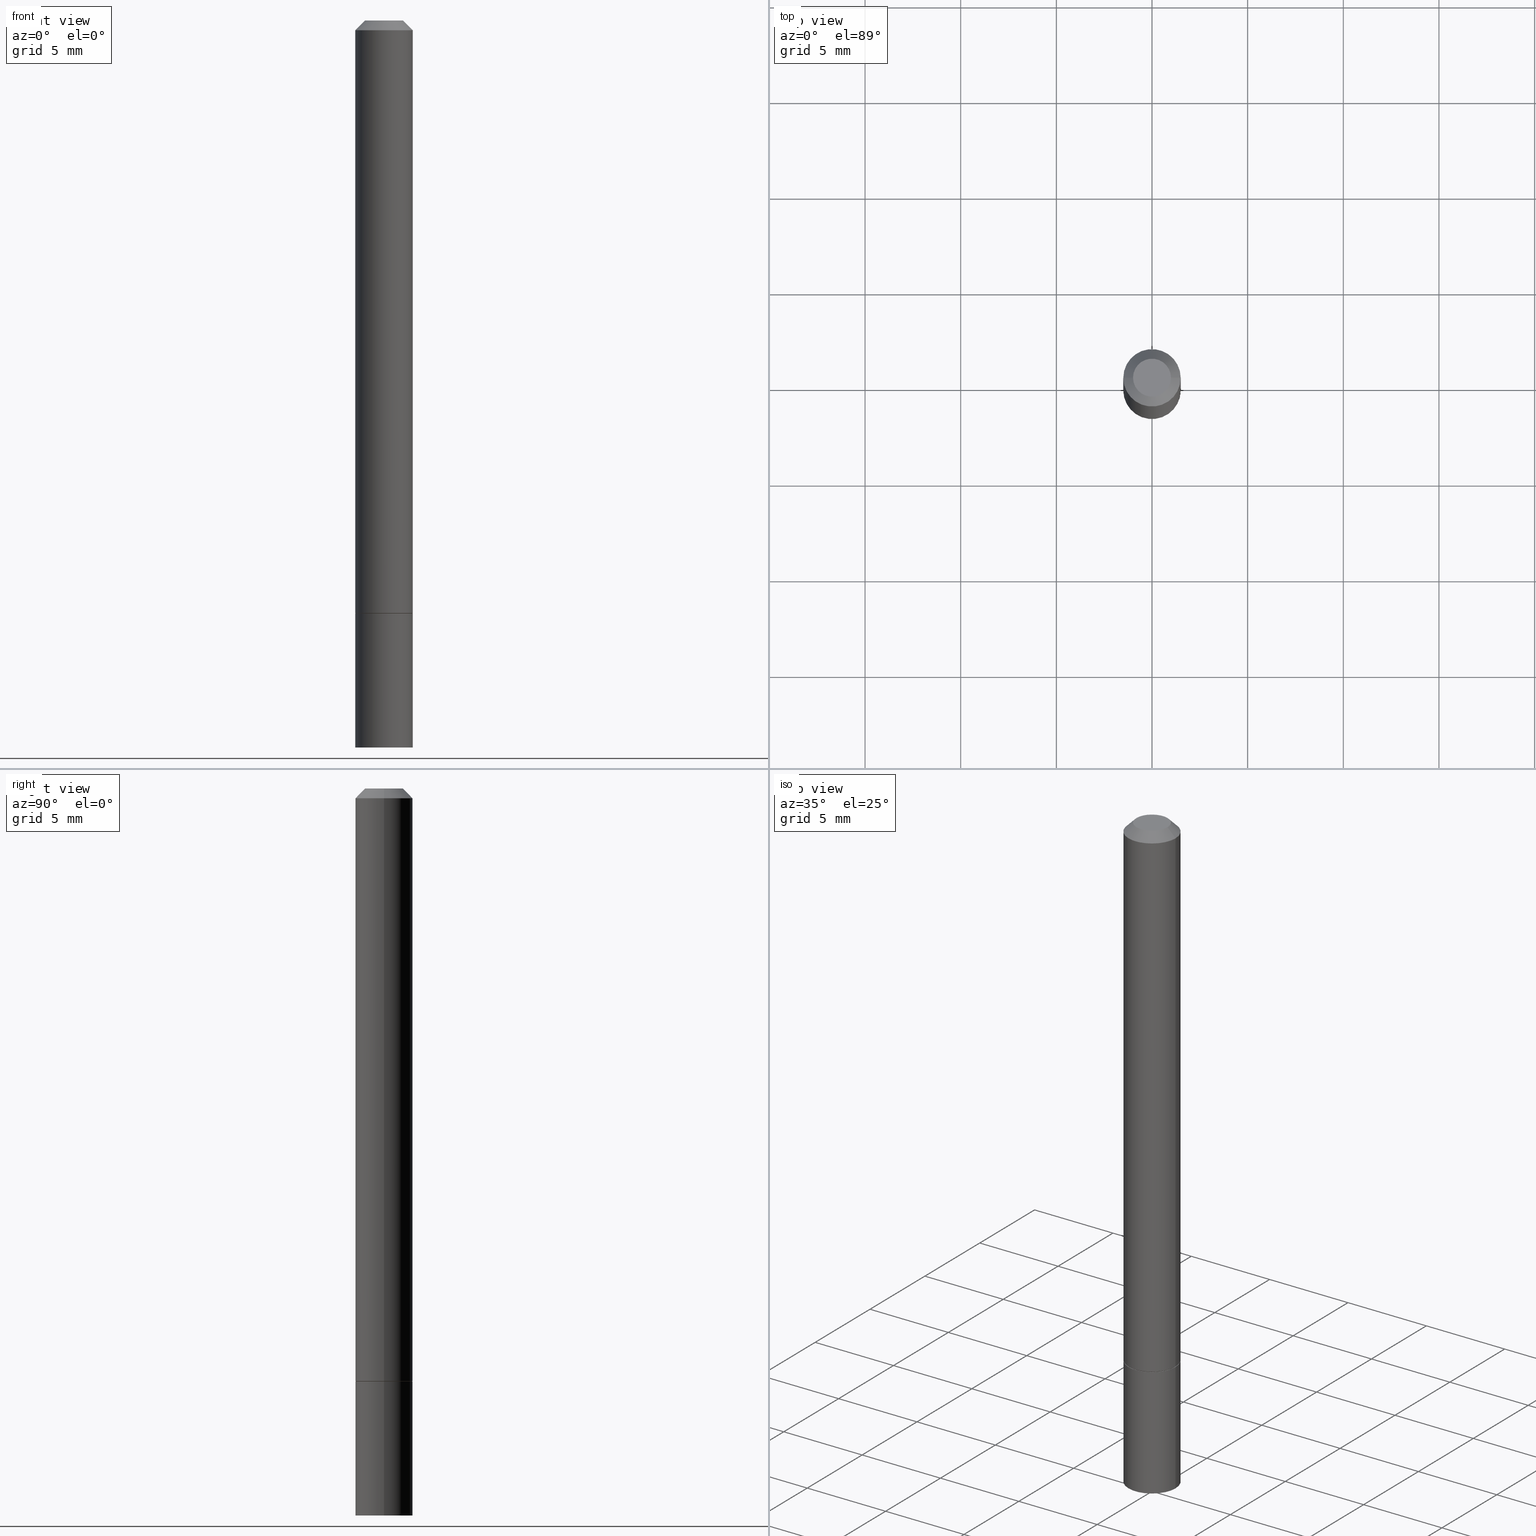
[diagram: canonical four-view strip — front | top / right | iso, engineering-drawing reading convention]
A machine part, canonical four-view strip (front | top / right | iso — engineering-drawing reading convention). The complete STEP part file that produces these views, byte-faithful:
ISO-10303-21;
HEADER;
FILE_DESCRIPTION (( 'STEP AP203' ),
    '1' );
FILE_NAME ('45277.STEP',
    '2024-02-28T09:04:06',
    ( '' ),
    ( '' ),
    'SwSTEP 2.0',
    'SolidWorks 2023',
    '' );
FILE_SCHEMA (( 'CONFIG_CONTROL_DESIGN' ));
ENDSEC;

DATA;
#1 = DIRECTION ( 'NONE',  ( 1.000000000000000000, -6.982962677686266711E-15, 0.000000000000000000 ) ) ;
#2 = AXIS2_PLACEMENT_3D ( 'NONE', #119, #258, #173 ) ;
#3 = VERTEX_POINT ( 'NONE', #17 ) ;
#4 = EDGE_CURVE ( 'NONE', #238, #322, #278, .T. ) ;
#5 = DIRECTION ( 'NONE',  ( -2.445468806185136597E-29, 3.491481338843145583E-15, 1.000000000000000000 ) ) ;
#6 = CARTESIAN_POINT ( 'NONE',  ( 3.658665880933582389E-29, -5.223605231043229660E-15, -1.496099999999999985 ) ) ;
#7 = ADVANCED_FACE ( 'NONE', ( #359 ), #207, .T. ) ;
#8 = PLANE ( 'NONE',  #191 ) ;
#9 = EDGE_LOOP ( 'NONE', ( #153, #287 ) ) ;
#10 = PERSON_AND_ORGANIZATION ( #250, #37 ) ;
#11 = ORIENTED_EDGE ( 'NONE', *, *, #245, .F. ) ;
#12 = LOCAL_TIME ( 4, 4, 6.000000000000000000, #40 ) ;
#13 = EDGE_LOOP ( 'NONE', ( #231, #41, #69, #234 ) ) ;
#14 = COORDINATED_UNIVERSAL_TIME_OFFSET ( 5, 0, .BEHIND. ) ;
#15 = ORIENTED_EDGE ( 'NONE', *, *, #114, .F. ) ;
#16 = CALENDAR_DATE ( 2024, 28, 2 ) ;
#17 = CARTESIAN_POINT ( 'NONE',  ( -0.05904999999999994975, 3.425143193405105373E-16, -0.02000000000000006287 ) ) ;
#18 = EDGE_CURVE ( 'NONE', #324, #3, #247, .T. ) ;
#19 = VERTEX_POINT ( 'NONE', #271 ) ;
#20 = MANIFOLD_SOLID_BREP ( 'Body-Move/Copy2[1]', #318 ) ;
#21 = CARTESIAN_POINT ( 'NONE',  ( 4.123439461174106654E-16, 0.05904999999999479415, -1.496100000000000207 ) ) ;
#22 = CARTESIAN_POINT ( 'NONE',  ( -0.05905000000000001914, -4.322903617084304851E-15, -1.220499999999999696 ) ) ;
#23 = CC_DESIGN_PERSON_AND_ORGANIZATION_ASSIGNMENT ( #10, #348, ( #172 ) ) ;
#24 = FACE_OUTER_BOUND ( 'NONE', #180, .T. ) ;
#25 = CARTESIAN_POINT ( 'NONE',  ( 2.726846925636483731E-16, 0.03904999999999995974, -1.576849087323267144E-16 ) ) ;
#26 = CC_DESIGN_PERSON_AND_ORGANIZATION_ASSIGNMENT ( #51, #358, ( #303 ) ) ;
#27 = DIRECTION ( 'NONE',  ( -0.7071067811866441621, 7.493145998870704414E-15, 0.7071067811864508723 ) ) ;
#28 = AXIS2_PLACEMENT_3D ( 'NONE', #58, #241, #364 ) ;
#29 = CARTESIAN_POINT ( 'NONE',  ( 2.984694677948958351E-29, -4.261352974058058239E-15, -1.220499999999999696 ) ) ;
#30 = CARTESIAN_POINT ( 'NONE',  ( 0.05904999999999994975, -4.749420335452716734E-16, -0.02000000000000006287 ) ) ;
#31 = ADVANCED_FACE ( 'NONE', ( #272 ), #82, .T. ) ;
#32 = CYLINDRICAL_SURFACE ( 'NONE', #229, 0.05905000000000001914 ) ;
#33 = PRODUCT_RELATED_PRODUCT_CATEGORY ( 'detail', '', ( #126 ) ) ;
#34 = ORIENTED_EDGE ( 'NONE', *, *, #114, .T. ) ;
#35 = AXIS2_PLACEMENT_3D ( 'NONE', #105, #330, #77 ) ;
#36 = CARTESIAN_POINT ( 'NONE',  ( 0.000000000000000000, 0.000000000000000000, 0.000000000000000000 ) ) ;
#37 = ORGANIZATION ( 'UNSPECIFIED', 'UNSPECIFIED', '' ) ;
#38 = EDGE_CURVE ( 'NONE', #360, #266, #365, .T. ) ;
#39 = LINE ( 'NONE', #65, #339 ) ;
#40 = COORDINATED_UNIVERSAL_TIME_OFFSET ( 5, 0, .BEHIND. ) ;
#41 = ORIENTED_EDGE ( 'NONE', *, *, #274, .T. ) ;
#42 = CONICAL_SURFACE ( 'NONE', #240, 0.05805000000000001131, 0.7853981633975849475 ) ;
#43 = SHAPE_DEFINITION_REPRESENTATION ( #225, #312 ) ;
#44 = ORIENTED_EDGE ( 'NONE', *, *, #327, .F. ) ;
#45 = CONICAL_SURFACE ( 'NONE', #344, 0.05805000000000001131, 0.7853981633975849475 ) ;
#46 = SECURITY_CLASSIFICATION_LEVEL ( 'unclassified' ) ;
#47 = ORIENTED_EDGE ( 'NONE', *, *, #327, .T. ) ;
#48 = ADVANCED_FACE ( 'NONE', ( #221 ), #138, .T. ) ;
#49 = PERSON_AND_ORGANIZATION ( #250, #37 ) ;
#50 = ORIENTED_EDGE ( 'NONE', *, *, #224, .T. ) ;
#51 = PERSON_AND_ORGANIZATION ( #250, #37 ) ;
#52 = CARTESIAN_POINT ( 'NONE',  ( 2.982249209142773869E-29, -4.257861492719216020E-15, -1.219500000000000028 ) ) ;
#53 = LOCAL_TIME ( 4, 4, 6.000000000000000000, #98 ) ;
#54 = CARTESIAN_POINT ( 'NONE',  ( 2.984694677948958351E-29, -4.261352974058058239E-15, -1.220499999999999696 ) ) ;
#55 = CC_DESIGN_PERSON_AND_ORGANIZATION_ASSIGNMENT ( #292, #329, ( #126 ) ) ;
#56 = CARTESIAN_POINT ( 'NONE',  ( -0.03904999999999995974, 3.075995059520794305E-16, -4.268512490100614657E-17 ) ) ;
#57 = DIRECTION ( 'NONE',  ( 1.000000000000000000, -6.982962677686270655E-15, 0.000000000000000000 ) ) ;
#58 = CARTESIAN_POINT ( 'NONE',  ( 4.890937612370288923E-31, -6.982962677686312563E-17, -0.02000000000000006287 ) ) ;
#59 = DIRECTION ( 'NONE',  ( 1.000000000000000000, -6.982962677686270655E-15, 0.000000000000000000 ) ) ;
#60 = DIMENSIONAL_EXPONENTS ( 1.000000000000000000, 0.000000000000000000, 0.000000000000000000, 0.000000000000000000, 0.000000000000000000, 0.000000000000000000, 0.000000000000000000 ) ;
#61 = CARTESIAN_POINT ( 'NONE',  ( 0.05805000000000001131, -4.666713957497746356E-15, -1.220499999999999696 ) ) ;
#62 = CARTESIAN_POINT ( 'NONE',  ( 0.05905000000000001914, -4.123439461173741806E-16, 2.879382386107500921E-30 ) ) ;
#63 = APPROVAL_PERSON_ORGANIZATION ( #96, #323, #156 ) ;
#64 = CC_DESIGN_PERSON_AND_ORGANIZATION_ASSIGNMENT ( #230, #131, ( #172 ) ) ;
#65 = CARTESIAN_POINT ( 'NONE',  ( -0.05905000000000001914, 4.195754854663392958E-16, -2.904631170795522943E-30 ) ) ;
#66 = ORIENTED_EDGE ( 'NONE', *, *, #276, .F. ) ;
#67 = DIRECTION ( 'NONE',  ( 1.000000000000000000, -6.982962677686266711E-15, 4.876176775795935793E-29 ) ) ;
#68 = PERSON_AND_ORGANIZATION ( #250, #37 ) ;
#69 = ORIENTED_EDGE ( 'NONE', *, *, #18, .F. ) ;
#70 = APPROVAL_DATE_TIME ( #321, #323 ) ;
#71 = VERTEX_POINT ( 'NONE', #22 ) ;
#72 = AXIS2_PLACEMENT_3D ( 'NONE', #83, #140, #57 ) ;
#73 = EDGE_CURVE ( 'NONE', #322, #238, #332, .T. ) ;
#74 = EDGE_LOOP ( 'NONE', ( #121, #159, #176, #186 ) ) ;
#75 = ORIENTED_EDGE ( 'NONE', *, *, #87, .F. ) ;
#76 = COORDINATED_UNIVERSAL_TIME_OFFSET ( 5, 0, .BEHIND. ) ;
#77 = DIRECTION ( 'NONE',  ( 1.000000000000000000, -6.982962677686266711E-15, 4.876176775795935793E-29 ) ) ;
#78 = EDGE_CURVE ( 'NONE', #3, #324, #363, .T. ) ;
#79 = AXIS2_PLACEMENT_3D ( 'NONE', #25, #165, #300 ) ;
#80 = CARTESIAN_POINT ( 'NONE',  ( 0.05904999999999994975, -4.749420335452716734E-16, -0.02000000000000006287 ) ) ;
#81 =( GEOMETRIC_REPRESENTATION_CONTEXT ( 3 ) GLOBAL_UNCERTAINTY_ASSIGNED_CONTEXT ( ( #243 ) ) GLOBAL_UNIT_ASSIGNED_CONTEXT ( ( #93, #294, #103 ) ) REPRESENTATION_CONTEXT ( 'NONE', 'WORKASPACE' ) );
#82 = PLANE ( 'NONE',  #296 ) ;
#83 = CARTESIAN_POINT ( 'NONE',  ( 2.984694677948958351E-29, -4.261352974058058239E-15, -1.220499999999999696 ) ) ;
#84 = ADVANCED_FACE ( 'NONE', ( #24 ), #228, .T. ) ;
#85 = DIRECTION ( 'NONE',  ( -2.445468806185136597E-29, 3.491481338843145583E-15, 1.000000000000000000 ) ) ;
#86 = DIRECTION ( 'NONE',  ( -2.445468806185136597E-29, 3.491481338843145583E-15, 1.000000000000000000 ) ) ;
#87 = EDGE_CURVE ( 'NONE', #19, #148, #107, .T. ) ;
#88 = FACE_OUTER_BOUND ( 'NONE', #74, .T. ) ;
#89 = DIRECTION ( 'NONE',  ( 1.000000000000000000, -6.982962677686270655E-15, 0.000000000000000000 ) ) ;
#90 = CIRCLE ( 'NONE', #289, 0.05905000000000001914 ) ;
#91 = CARTESIAN_POINT ( 'NONE',  ( -0.05905000000000008159, -1.744270074281697603E-15, -1.219500000000000028 ) ) ;
#92 = CARTESIAN_POINT ( 'NONE',  ( 0.05905000000000001914, -5.635949177160603791E-15, -1.496099999999999985 ) ) ;
#93 =( CONVERSION_BASED_UNIT ( 'INCH', #149 ) LENGTH_UNIT ( ) NAMED_UNIT ( #60 ) );
#94 = ADVANCED_FACE ( 'NONE', ( #194 ), #190, .F. ) ;
#95 = AXIS2_PLACEMENT_3D ( 'NONE', #134, #168, #1 ) ;
#96 = PERSON_AND_ORGANIZATION ( #250, #37 ) ;
#97 = AXIS2_PLACEMENT_3D ( 'NONE', #205, #232, #267 ) ;
#98 = COORDINATED_UNIVERSAL_TIME_OFFSET ( 5, 0, .BEHIND. ) ;
#99 = ORIENTED_EDGE ( 'NONE', *, *, #203, .T. ) ;
#100 = ORIENTED_EDGE ( 'NONE', *, *, #38, .T. ) ;
#101 = EDGE_CURVE ( 'NONE', #293, #211, #122, .T. ) ;
#102 = EDGE_LOOP ( 'NONE', ( #213, #34, #124, #44 ) ) ;
#103 =( NAMED_UNIT ( * ) SI_UNIT ( $, .STERADIAN. ) SOLID_ANGLE_UNIT ( ) );
#104 = ADVANCED_FACE ( 'NONE', ( #112 ), #42, .T. ) ;
#105 = CARTESIAN_POINT ( 'NONE',  ( 0.000000000000000000, 0.000000000000000000, 0.000000000000000000 ) ) ;
#106 = ORIENTED_EDGE ( 'NONE', *, *, #175, .T. ) ;
#107 = CIRCLE ( 'NONE', #72, 0.05805000000000001131 ) ;
#108 = DIRECTION ( 'NONE',  ( -2.445468806185136597E-29, 3.491481338843145583E-15, 1.000000000000000000 ) ) ;
#109 = CARTESIAN_POINT ( 'NONE',  ( 4.890937612370288923E-31, -6.982962677686312563E-17, -0.02000000000000006287 ) ) ;
#110 = CARTESIAN_POINT ( 'NONE',  ( 2.984694677948958351E-29, -4.261352974058058239E-15, -1.220499999999999696 ) ) ;
#111 = DIRECTION ( 'NONE',  ( -2.445468806185136597E-29, 3.491481338843145583E-15, 1.000000000000000000 ) ) ;
#112 = FACE_OUTER_BOUND ( 'NONE', #182, .T. ) ;
#113 = LINE ( 'NONE', #341, #242 ) ;
#114 = EDGE_CURVE ( 'NONE', #148, #322, #248, .T. ) ;
#115 = DIRECTION ( 'NONE',  ( -1.000000000000000000, 6.982962677686265922E-15, -4.876176775795935793E-29 ) ) ;
#116 = VECTOR ( 'NONE', #270, 39.37007874015748854 ) ;
#117 = CIRCLE ( 'NONE', #2, 0.05905000000000001914 ) ;
#118 = CARTESIAN_POINT ( 'NONE',  ( 0.05905000000000008159, -4.670205438836590941E-15, -1.219500000000000028 ) ) ;
#119 = CARTESIAN_POINT ( 'NONE',  ( 3.658665880933582389E-29, -5.223605231043229660E-15, -1.496099999999999985 ) ) ;
#120 = CALENDAR_DATE ( 2024, 28, 2 ) ;
#121 = ORIENTED_EDGE ( 'NONE', *, *, #175, .F. ) ;
#122 = CIRCLE ( 'NONE', #307, 0.03904999999999995974 ) ;
#123 = DATE_TIME_ROLE ( 'classification_date' ) ;
#124 = ORIENTED_EDGE ( 'NONE', *, *, #4, .F. ) ;
#125 = LOCAL_TIME ( 4, 4, 6.000000000000000000, #76 ) ;
#126 = PRODUCT ( '45277', '45277', '', ( #129 ) ) ;
#127 = APPROVAL_STATUS ( 'not_yet_approved' ) ;
#128 = ORIENTED_EDGE ( 'NONE', *, *, #38, .F. ) ;
#129 = MECHANICAL_CONTEXT ( 'NONE', #189, 'mechanical' ) ;
#130 = EDGE_LOOP ( 'NONE', ( #75, #133 ) ) ;
#131 = PERSON_AND_ORGANIZATION_ROLE ( 'creator' ) ;
#132 = ORIENTED_EDGE ( 'NONE', *, *, #274, .F. ) ;
#133 = ORIENTED_EDGE ( 'NONE', *, *, #203, .F. ) ;
#134 = CARTESIAN_POINT ( 'NONE',  ( 4.890937612370288923E-31, -6.982962677686312563E-17, -0.02000000000000006287 ) ) ;
#135 = VECTOR ( 'NONE', #298, 39.37007874015748854 ) ;
#136 = CARTESIAN_POINT ( 'NONE',  ( 2.982249209142773869E-29, -4.257861492719216020E-15, -1.219500000000000028 ) ) ;
#137 = VECTOR ( 'NONE', #174, 39.37007874015748143 ) ;
#138 = CYLINDRICAL_SURFACE ( 'NONE', #141, 0.05905000000000001914 ) ;
#139 = CARTESIAN_POINT ( 'NONE',  ( 1.043851414335219781E-45, -1.490343170380447145E-31, -4.268512490100411279E-17 ) ) ;
#140 = DIRECTION ( 'NONE',  ( -2.445468806185136597E-29, 3.491481338843145583E-15, 1.000000000000000000 ) ) ;
#141 = AXIS2_PLACEMENT_3D ( 'NONE', #192, #86, #302 ) ;
#142 = MANIFOLD_SOLID_BREP ( 'Body-Move/Copy2[2]', #301 ) ;
#143 = VECTOR ( 'NONE', #342, 39.37007874015748143 ) ;
#144 = DIRECTION ( 'NONE',  ( -2.445468806185136877E-29, 3.491481338843145188E-15, 1.000000000000000000 ) ) ;
#145 = DIRECTION ( 'NONE',  ( 1.000000000000000000, -6.982962677686266711E-15, 4.876176775795935793E-29 ) ) ;
#146 = DESIGN_CONTEXT ( 'detailed design', #361, 'design' ) ;
#147 = DIRECTION ( 'NONE',  ( 1.000000000000000000, -6.982962677686265922E-15, 4.876176775795935793E-29 ) ) ;
#148 = VERTEX_POINT ( 'NONE', #244 ) ;
#149 = LENGTH_MEASURE_WITH_UNIT ( LENGTH_MEASURE( 0.02539999999999999897 ), #249 );
#150 = DIRECTION ( 'NONE',  ( -2.445468806185136877E-29, 3.491481338843145188E-15, 1.000000000000000000 ) ) ;
#151 = EDGE_CURVE ( 'NONE', #71, #266, #90, .T. ) ;
#152 = COORDINATED_UNIVERSAL_TIME_OFFSET ( 5, 0, .BEHIND. ) ;
#153 = ORIENTED_EDGE ( 'NONE', *, *, #349, .T. ) ;
#154 = CC_DESIGN_APPROVAL ( #323, ( #303 ) ) ;
#155 = EDGE_LOOP ( 'NONE', ( #132, #328, #262, #157 ) ) ;
#156 = APPROVAL_ROLE ( '' ) ;
#157 = ORIENTED_EDGE ( 'NONE', *, *, #78, .F. ) ;
#158 = APPROVAL_STATUS ( 'not_yet_approved' ) ;
#159 = ORIENTED_EDGE ( 'NONE', *, *, #224, .F. ) ;
#160 = VERTEX_POINT ( 'NONE', #169 ) ;
#161 = AXIS2_PLACEMENT_3D ( 'NONE', #284, #5, #201 ) ;
#162 = LINE ( 'NONE', #299, #116 ) ;
#163 = FACE_OUTER_BOUND ( 'NONE', #102, .T. ) ;
#164 = AXIS2_PLACEMENT_3D ( 'NONE', #239, #108, #216 ) ;
#165 = DIRECTION ( 'NONE',  ( 2.438088387897960049E-29, -3.491481338843145188E-15, -1.000000000000000000 ) ) ;
#166 = APPROVAL ( #158, 'UNSPECIFIED' ) ;
#167 = APPROVAL_PERSON_ORGANIZATION ( #49, #166, #183 ) ;
#168 = DIRECTION ( 'NONE',  ( -2.445468806185136597E-29, 3.491481338843145583E-15, 1.000000000000000000 ) ) ;
#169 = CARTESIAN_POINT ( 'NONE',  ( -0.05905000000000001914, -4.322903617084304851E-15, -1.496099999999999985 ) ) ;
#170 = CYLINDRICAL_SURFACE ( 'NONE', #268, 0.05905000000000001914 ) ;
#171 = AXIS2_PLACEMENT_3D ( 'NONE', #109, #219, #220 ) ;
#172 = PRODUCT_DEFINITION_FORMATION_WITH_SPECIFIED_SOURCE ( 'ANY', '', #126, .NOT_KNOWN. ) ;
#173 = DIRECTION ( 'NONE',  ( 1.000000000000000000, -6.982962677686270655E-15, 0.000000000000000000 ) ) ;
#174 = DIRECTION ( 'NONE',  ( 0.7071067811866441621, -2.468850131083269169E-15, 0.7071067811864508723 ) ) ;
#175 = EDGE_CURVE ( 'NONE', #293, #324, #331, .T. ) ;
#176 = ORIENTED_EDGE ( 'NONE', *, *, #199, .T. ) ;
#177 = CARTESIAN_POINT ( 'NONE',  ( 0.05905000000000001914, -4.673696920175432370E-15, -1.220499999999999696 ) ) ;
#178 = AXIS2_PLACEMENT_3D ( 'NONE', #29, #345, #200 ) ;
#179 = DIRECTION ( 'NONE',  ( 2.438088387897960049E-29, -3.491481338843145188E-15, -1.000000000000000000 ) ) ;
#180 = EDGE_LOOP ( 'NONE', ( #260, #106, #214, #352 ) ) ;
#181 = CALENDAR_DATE ( 2024, 28, 2 ) ;
#182 = EDGE_LOOP ( 'NONE', ( #15, #99, #47, #188 ) ) ;
#183 = APPROVAL_ROLE ( '' ) ;
#184 = AXIS2_PLACEMENT_3D ( 'NONE', #343, #196, #253 ) ;
#185 = ORIENTED_EDGE ( 'NONE', *, *, #349, .F. ) ;
#186 = ORIENTED_EDGE ( 'NONE', *, *, #78, .T. ) ;
#187 = PERSON_AND_ORGANIZATION_ROLE ( 'creator' ) ;
#188 = ORIENTED_EDGE ( 'NONE', *, *, #73, .F. ) ;
#189 = APPLICATION_CONTEXT ( 'configuration controlled 3d designs of mechanical parts and assemblies' ) ;
#190 = PLANE ( 'NONE',  #79 ) ;
#191 = AXIS2_PLACEMENT_3D ( 'NONE', #222, #202, #147 ) ;
#192 = CARTESIAN_POINT ( 'NONE',  ( 0.000000000000000000, 0.000000000000000000, 0.000000000000000000 ) ) ;
#193 = DIRECTION ( 'NONE',  ( -2.445468806185136597E-29, 3.491481338843145583E-15, 1.000000000000000000 ) ) ;
#194 = FACE_OUTER_BOUND ( 'NONE', #288, .T. ) ;
#195 = DIRECTION ( 'NONE',  ( 1.000000000000000000, -6.982962677686266711E-15, 4.873707401586867728E-29 ) ) ;
#196 = DIRECTION ( 'NONE',  ( 2.445468806185136597E-29, -3.491481338843145583E-15, -1.000000000000000000 ) ) ;
#197 = DIRECTION ( 'NONE',  ( -2.445468806185136597E-29, 3.491481338843145583E-15, 1.000000000000000000 ) ) ;
#198 = VECTOR ( 'NONE', #27, 39.37007874015748143 ) ;
#199 = EDGE_CURVE ( 'NONE', #211, #3, #162, .T. ) ;
#200 = DIRECTION ( 'NONE',  ( 1.000000000000000000, -6.982962677686270655E-15, 0.000000000000000000 ) ) ;
#201 = DIRECTION ( 'NONE',  ( 1.000000000000000000, -6.982962677686266711E-15, 4.873707401586867728E-29 ) ) ;
#202 = DIRECTION ( 'NONE',  ( -2.438088387897960049E-29, 3.491481338843145188E-15, 1.000000000000000000 ) ) ;
#203 = EDGE_CURVE ( 'NONE', #148, #19, #325, .T. ) ;
#204 = LOCAL_TIME ( 4, 4, 6.000000000000000000, #14 ) ;
#205 = CARTESIAN_POINT ( 'NONE',  ( 0.000000000000000000, 0.000000000000000000, 0.000000000000000000 ) ) ;
#206 = CALENDAR_DATE ( 2024, 28, 2 ) ;
#207 = CYLINDRICAL_SURFACE ( 'NONE', #35, 0.05905000000000001914 ) ;
#208 = ORIENTED_EDGE ( 'NONE', *, *, #276, .T. ) ;
#209 = VECTOR ( 'NONE', #275, 39.37007874015748143 ) ;
#210 = DATE_AND_TIME ( #181, #12 ) ;
#211 = VERTEX_POINT ( 'NONE', #56 ) ;
#212 = CALENDAR_DATE ( 2024, 28, 2 ) ;
#213 = ORIENTED_EDGE ( 'NONE', *, *, #87, .T. ) ;
#214 = ORIENTED_EDGE ( 'NONE', *, *, #18, .T. ) ;
#215 = ADVANCED_FACE ( 'NONE', ( #163 ), #45, .T. ) ;
#216 = DIRECTION ( 'NONE',  ( 1.000000000000000000, -6.982962677686270655E-15, 0.000000000000000000 ) ) ;
#217 = CC_DESIGN_APPROVAL ( #166, ( #172 ) ) ;
#218 = CC_DESIGN_PERSON_AND_ORGANIZATION_ASSIGNMENT ( #68, #187, ( #353 ) ) ;
#219 = DIRECTION ( 'NONE',  ( 2.445468806185136597E-29, -3.491481338843145583E-15, -1.000000000000000000 ) ) ;
#220 = DIRECTION ( 'NONE',  ( -1.000000000000000000, 6.982962677686266711E-15, 0.000000000000000000 ) ) ;
#221 = FACE_OUTER_BOUND ( 'NONE', #264, .T. ) ;
#222 = CARTESIAN_POINT ( 'NONE',  ( 2.984694677948958351E-29, -4.261352974058058239E-15, -1.220499999999999696 ) ) ;
#223 = LINE ( 'NONE', #62, #143 ) ;
#224 = EDGE_CURVE ( 'NONE', #211, #293, #350, .T. ) ;
#225 = PRODUCT_DEFINITION_SHAPE ( 'NONE', 'NONE',  #353 ) ;
#226 = CARTESIAN_POINT ( 'NONE',  ( 0.03904999999999995974, -3.714222401791248901E-16, -4.268512490100186330E-17 ) ) ;
#227 = DATE_AND_TIME ( #120, #125 ) ;
#228 = CONICAL_SURFACE ( 'NONE', #171, 0.05904999999999994975, 0.7853981633974476129 ) ;
#229 = AXIS2_PLACEMENT_3D ( 'NONE', #316, #251, #67 ) ;
#230 = PERSON_AND_ORGANIZATION ( #250, #37 ) ;
#231 = ORIENTED_EDGE ( 'NONE', *, *, #4, .T. ) ;
#232 = DIRECTION ( 'NONE',  ( 0.000000000000000000, 0.000000000000000000, 1.000000000000000000 ) ) ;
#233 = EDGE_LOOP ( 'NONE', ( #354, #356, #185, #128 ) ) ;
#234 = ORIENTED_EDGE ( 'NONE', *, *, #255, .F. ) ;
#235 = DATE_TIME_ROLE ( 'creation_date' ) ;
#236 = DIRECTION ( 'NONE',  ( -2.445468806185136597E-29, 3.491481338843145583E-15, 1.000000000000000000 ) ) ;
#237 = ADVANCED_FACE ( 'NONE', ( #256 ), #346, .F. ) ;
#238 = VERTEX_POINT ( 'NONE', #118 ) ;
#239 = CARTESIAN_POINT ( 'NONE',  ( 2.984694677948958351E-29, -4.261352974058058239E-15, -1.220499999999999696 ) ) ;
#240 = AXIS2_PLACEMENT_3D ( 'NONE', #54, #277, #246 ) ;
#241 = DIRECTION ( 'NONE',  ( -2.445468806185136597E-29, 3.491481338843145583E-15, 1.000000000000000000 ) ) ;
#242 = VECTOR ( 'NONE', #144, 39.37007874015748143 ) ;
#243 = UNCERTAINTY_MEASURE_WITH_UNIT (LENGTH_MEASURE( 1.000000000000000082E-05 ), #93, 'distance_accuracy_value', 'NONE');
#244 = CARTESIAN_POINT ( 'NONE',  ( -0.05805000000000001131, -3.843584461601098141E-15, -1.220499999999999696 ) ) ;
#245 = EDGE_CURVE ( 'NONE', #360, #160, #273, .T. ) ;
#246 = DIRECTION ( 'NONE',  ( 1.000000000000000000, -6.982962677686270655E-15, 0.000000000000000000 ) ) ;
#247 = CIRCLE ( 'NONE', #95, 0.05904999999999994975 ) ;
#248 = LINE ( 'NONE', #366, #198 ) ;
#249 =( LENGTH_UNIT ( ) NAMED_UNIT ( * ) SI_UNIT ( $, .METRE. ) );
#250 = PERSON ( 'UNSPECIFIED', 'UNSPECIFIED', 'UNSPECIFIED', ('UNSPECIFIED'), ('UNSPECIFIED'), ('UNSPECIFIED') ) ;
#251 = DIRECTION ( 'NONE',  ( -2.445468806185136597E-29, 3.491481338843145583E-15, 1.000000000000000000 ) ) ;
#252 = EDGE_LOOP ( 'NONE', ( #11, #66 ) ) ;
#253 = DIRECTION ( 'NONE',  ( -1.000000000000000000, 6.982962677686266711E-15, 0.000000000000000000 ) ) ;
#254 = APPROVAL_PERSON_ORGANIZATION ( #351, #282, #320 ) ;
#255 = EDGE_CURVE ( 'NONE', #238, #324, #223, .T. ) ;
#256 = FACE_OUTER_BOUND ( 'NONE', #9, .T. ) ;
#257 = CC_DESIGN_DATE_AND_TIME_ASSIGNMENT ( #227, #123, ( #303 ) ) ;
#258 = DIRECTION ( 'NONE',  ( -2.445468806185136597E-29, 3.491481338843145583E-15, 1.000000000000000000 ) ) ;
#259 = DATE_AND_TIME ( #16, #204 ) ;
#260 = ORIENTED_EDGE ( 'NONE', *, *, #101, .F. ) ;
#261 = CC_DESIGN_SECURITY_CLASSIFICATION ( #303, ( #172 ) ) ;
#262 = ORIENTED_EDGE ( 'NONE', *, *, #255, .T. ) ;
#263 = APPLICATION_PROTOCOL_DEFINITION ( 'international standard', 'config_control_design', 1994, #361 ) ;
#264 = EDGE_LOOP ( 'NONE', ( #313, #208, #100, #295 ) ) ;
#265 = APPLICATION_PROTOCOL_DEFINITION ( 'international standard', 'config_control_design', 1994, #189 ) ;
#266 = VERTEX_POINT ( 'NONE', #177 ) ;
#267 = DIRECTION ( 'NONE',  ( 1.000000000000000000, 0.000000000000000000, 0.000000000000000000 ) ) ;
#268 = AXIS2_PLACEMENT_3D ( 'NONE', #36, #197, #145 ) ;
#269 = DIRECTION ( 'NONE',  ( 1.000000000000000000, -6.982962677686270655E-15, 0.000000000000000000 ) ) ;
#270 = DIRECTION ( 'NONE',  ( -0.7071067811865469066, 2.468850131082251144E-15, -0.7071067811865479058 ) ) ;
#271 = CARTESIAN_POINT ( 'NONE',  ( 0.05805000000000001131, -4.666713957497746356E-15, -1.220499999999999696 ) ) ;
#272 = FACE_OUTER_BOUND ( 'NONE', #252, .T. ) ;
#273 = CIRCLE ( 'NONE', #319, 0.05905000000000001914 ) ;
#274 = EDGE_CURVE ( 'NONE', #322, #3, #39, .T. ) ;
#275 = DIRECTION ( 'NONE',  ( -2.445468806185136877E-29, 3.491481338843145188E-15, 1.000000000000000000 ) ) ;
#276 = EDGE_CURVE ( 'NONE', #160, #360, #117, .T. ) ;
#277 = DIRECTION ( 'NONE',  ( -2.445468806185136597E-29, 3.491481338843145583E-15, 1.000000000000000000 ) ) ;
#278 = CIRCLE ( 'NONE', #357, 0.05905000000000008159 ) ;
#279 = ADVANCED_FACE ( 'NONE', ( #311 ), #8, .F. ) ;
#280 = FACE_OUTER_BOUND ( 'NONE', #233, .T. ) ;
#281 = LOCAL_TIME ( 4, 4, 6.000000000000000000, #152 ) ;
#282 = APPROVAL ( #127, 'UNSPECIFIED' ) ;
#283 = FACE_OUTER_BOUND ( 'NONE', #155, .T. ) ;
#284 = CARTESIAN_POINT ( 'NONE',  ( 1.043851414335219781E-45, -1.490343170380447145E-31, -4.268512490100411279E-17 ) ) ;
#285 = DIRECTION ( 'NONE',  ( -2.445468806185136597E-29, 3.491481338843145583E-15, 1.000000000000000000 ) ) ;
#286 = APPROVAL_STATUS ( 'not_yet_approved' ) ;
#287 = ORIENTED_EDGE ( 'NONE', *, *, #151, .T. ) ;
#288 = EDGE_LOOP ( 'NONE', ( #50, #291 ) ) ;
#289 = AXIS2_PLACEMENT_3D ( 'NONE', #110, #111, #59 ) ;
#290 = APPROVAL_DATE_TIME ( #259, #166 ) ;
#291 = ORIENTED_EDGE ( 'NONE', *, *, #101, .T. ) ;
#292 = PERSON_AND_ORGANIZATION ( #250, #37 ) ;
#293 = VERTEX_POINT ( 'NONE', #226 ) ;
#294 =( NAMED_UNIT ( * ) PLANE_ANGLE_UNIT ( ) SI_UNIT ( $, .RADIAN. ) );
#295 = ORIENTED_EDGE ( 'NONE', *, *, #151, .F. ) ;
#296 = AXIS2_PLACEMENT_3D ( 'NONE', #21, #362, #304 ) ;
#297 = CONICAL_SURFACE ( 'NONE', #184, 0.05904999999999994975, 0.7853981633974476129 ) ;
#298 = DIRECTION ( 'NONE',  ( 0.7071067811865469066, -7.319954787623252890E-15, -0.7071067811865479058 ) ) ;
#299 = CARTESIAN_POINT ( 'NONE',  ( -0.05904999999999994975, 3.425143193405105373E-16, -0.02000000000000006287 ) ) ;
#300 = DIRECTION ( 'NONE',  ( -1.000000000000000000, 6.982962677686265922E-15, -4.876176775795935793E-29 ) ) ;
#301 = CLOSED_SHELL ( 'NONE', ( #215, #7, #84, #315, #335, #104, #279, #94 ) ) ;
#302 = DIRECTION ( 'NONE',  ( 1.000000000000000000, -6.982962677686266711E-15, 4.876176775795935793E-29 ) ) ;
#303 = SECURITY_CLASSIFICATION ( '', '', #46 ) ;
#304 = DIRECTION ( 'NONE',  ( -1.000000000000000000, 6.982962677686265922E-15, -4.876176775795935793E-29 ) ) ;
#305 = EDGE_CURVE ( 'NONE', #160, #71, #113, .T. ) ;
#306 = LINE ( 'NONE', #61, #137 ) ;
#307 = AXIS2_PLACEMENT_3D ( 'NONE', #139, #334, #195 ) ;
#308 = DIRECTION ( 'NONE',  ( 1.000000000000000000, -6.982962677686270655E-15, 0.000000000000000000 ) ) ;
#309 = CC_DESIGN_APPROVAL ( #282, ( #353 ) ) ;
#310 = CIRCLE ( 'NONE', #178, 0.05905000000000001914 ) ;
#311 = FACE_OUTER_BOUND ( 'NONE', #130, .T. ) ;
#312 = ADVANCED_BREP_SHAPE_REPRESENTATION ( '45277', ( #20, #142, #97 ), #81 ) ;
#313 = ORIENTED_EDGE ( 'NONE', *, *, #305, .F. ) ;
#314 = CARTESIAN_POINT ( 'NONE',  ( 4.123439461174039601E-16, 0.05904999999999575866, -1.220499999999999918 ) ) ;
#315 = ADVANCED_FACE ( 'NONE', ( #88 ), #297, .T. ) ;
#316 = CARTESIAN_POINT ( 'NONE',  ( 0.000000000000000000, 0.000000000000000000, 0.000000000000000000 ) ) ;
#317 = CC_DESIGN_DATE_AND_TIME_ASSIGNMENT ( #326, #235, ( #353 ) ) ;
#318 = CLOSED_SHELL ( 'NONE', ( #340, #31, #237, #48 ) ) ;
#319 = AXIS2_PLACEMENT_3D ( 'NONE', #6, #285, #308 ) ;
#320 = APPROVAL_ROLE ( '' ) ;
#321 = DATE_AND_TIME ( #206, #53 ) ;
#322 = VERTEX_POINT ( 'NONE', #91 ) ;
#323 = APPROVAL ( #286, 'UNSPECIFIED' ) ;
#324 = VERTEX_POINT ( 'NONE', #30 ) ;
#325 = CIRCLE ( 'NONE', #164, 0.05805000000000001131 ) ;
#326 = DATE_AND_TIME ( #212, #281 ) ;
#327 = EDGE_CURVE ( 'NONE', #19, #238, #306, .T. ) ;
#328 = ORIENTED_EDGE ( 'NONE', *, *, #73, .T. ) ;
#329 = PERSON_AND_ORGANIZATION_ROLE ( 'design_owner' ) ;
#330 = DIRECTION ( 'NONE',  ( -2.445468806185136597E-29, 3.491481338843145583E-15, 1.000000000000000000 ) ) ;
#331 = LINE ( 'NONE', #80, #135 ) ;
#332 = CIRCLE ( 'NONE', #347, 0.05905000000000008159 ) ;
#333 = AXIS2_PLACEMENT_3D ( 'NONE', #314, #179, #115 ) ;
#334 = DIRECTION ( 'NONE',  ( -2.445468806185136597E-29, 3.491481338843145583E-15, 1.000000000000000000 ) ) ;
#335 = ADVANCED_FACE ( 'NONE', ( #283 ), #170, .T. ) ;
#336 = CARTESIAN_POINT ( 'NONE',  ( 2.984694677948958351E-29, -4.261352974058058239E-15, -1.220499999999999696 ) ) ;
#337 = DIRECTION ( 'NONE',  ( 1.000000000000000000, -6.982962677686270655E-15, 0.000000000000000000 ) ) ;
#338 = CARTESIAN_POINT ( 'NONE',  ( 0.05905000000000001914, -4.123439461173741806E-16, 2.879382386107500921E-30 ) ) ;
#339 = VECTOR ( 'NONE', #150, 39.37007874015748143 ) ;
#340 = ADVANCED_FACE ( 'NONE', ( #280 ), #32, .T. ) ;
#341 = CARTESIAN_POINT ( 'NONE',  ( -0.05905000000000001914, 4.195754854663392958E-16, -2.904631170795522943E-30 ) ) ;
#342 = DIRECTION ( 'NONE',  ( -2.445468806185136877E-29, 3.491481338843145188E-15, 1.000000000000000000 ) ) ;
#343 = CARTESIAN_POINT ( 'NONE',  ( 4.890937612370288923E-31, -6.982962677686312563E-17, -0.02000000000000006287 ) ) ;
#344 = AXIS2_PLACEMENT_3D ( 'NONE', #336, #193, #89 ) ;
#345 = DIRECTION ( 'NONE',  ( -2.445468806185136597E-29, 3.491481338843145583E-15, 1.000000000000000000 ) ) ;
#346 = PLANE ( 'NONE',  #333 ) ;
#347 = AXIS2_PLACEMENT_3D ( 'NONE', #136, #85, #337 ) ;
#348 = PERSON_AND_ORGANIZATION_ROLE ( 'design_supplier' ) ;
#349 = EDGE_CURVE ( 'NONE', #266, #71, #310, .T. ) ;
#350 = CIRCLE ( 'NONE', #161, 0.03904999999999995974 ) ;
#351 = PERSON_AND_ORGANIZATION ( #250, #37 ) ;
#352 = ORIENTED_EDGE ( 'NONE', *, *, #199, .F. ) ;
#353 = PRODUCT_DEFINITION ( 'UNKNOWN', '', #172, #146 ) ;
#354 = ORIENTED_EDGE ( 'NONE', *, *, #245, .T. ) ;
#355 = APPROVAL_DATE_TIME ( #210, #282 ) ;
#356 = ORIENTED_EDGE ( 'NONE', *, *, #305, .T. ) ;
#357 = AXIS2_PLACEMENT_3D ( 'NONE', #52, #236, #269 ) ;
#358 = PERSON_AND_ORGANIZATION_ROLE ( 'classification_officer' ) ;
#359 = FACE_OUTER_BOUND ( 'NONE', #13, .T. ) ;
#360 = VERTEX_POINT ( 'NONE', #92 ) ;
#361 = APPLICATION_CONTEXT ( 'configuration controlled 3d designs of mechanical parts and assemblies' ) ;
#362 = DIRECTION ( 'NONE',  ( 2.438088387897960049E-29, -3.491481338843145188E-15, -1.000000000000000000 ) ) ;
#363 = CIRCLE ( 'NONE', #28, 0.05904999999999994975 ) ;
#364 = DIRECTION ( 'NONE',  ( 1.000000000000000000, -6.982962677686266711E-15, 0.000000000000000000 ) ) ;
#365 = LINE ( 'NONE', #338, #209 ) ;
#366 = CARTESIAN_POINT ( 'NONE',  ( -0.05805000000000001131, -3.848882915949319754E-15, -1.220499999999999696 ) ) ;
ENDSEC;
END-ISO-10303-21;
